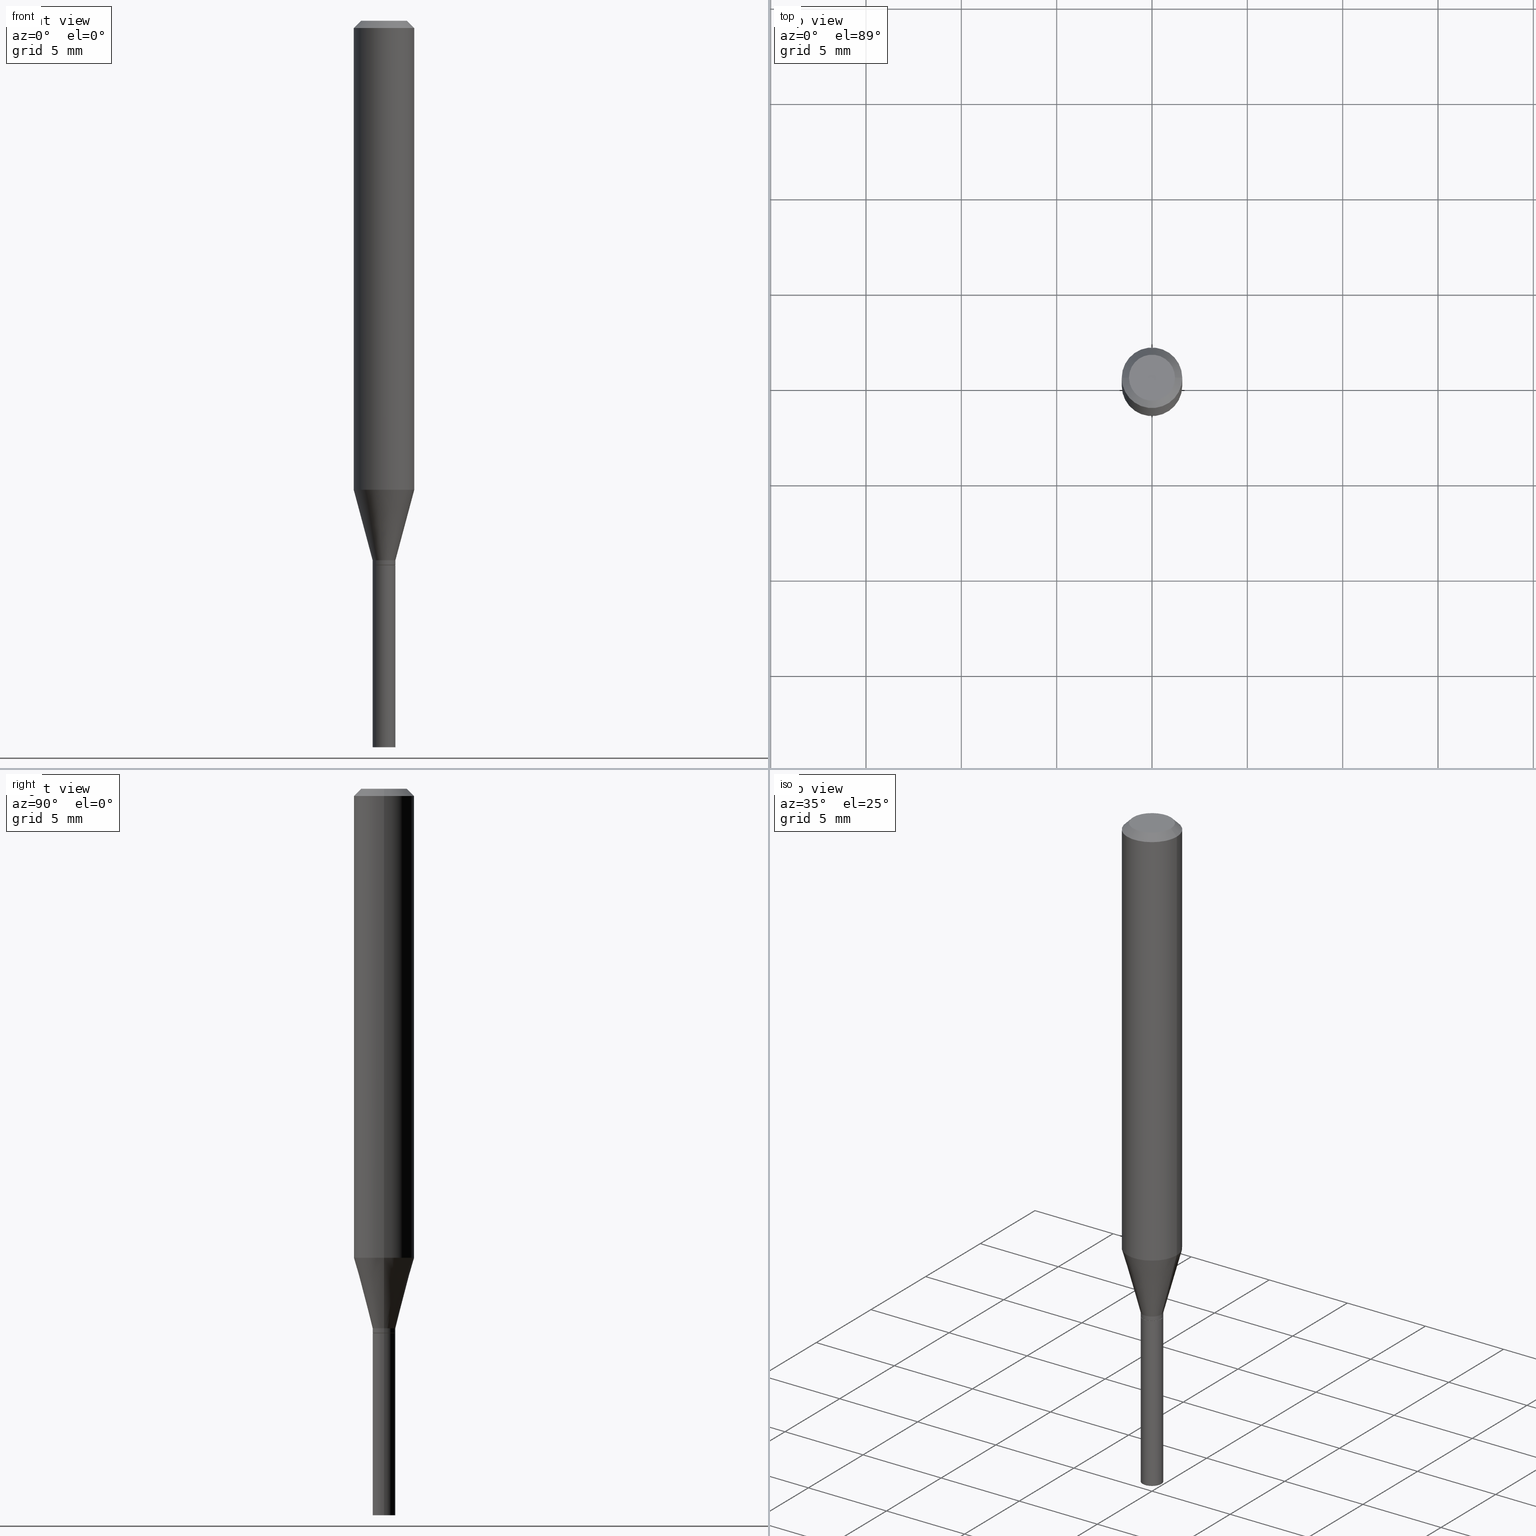
[diagram: canonical four-view strip — front | top / right | iso, engineering-drawing reading convention]
A machine part, canonical four-view strip (front | top / right | iso — engineering-drawing reading convention). The complete STEP part file that produces these views, byte-faithful:
ISO-10303-21;
HEADER;
FILE_DESCRIPTION (( 'STEP AP203' ),
    '1' );
FILE_NAME ('02676.STEP',
    '2024-03-18T21:17:20',
    ( '' ),
    ( '' ),
    'SwSTEP 2.0',
    'SolidWorks 2023',
    '' );
FILE_SCHEMA (( 'CONFIG_CONTROL_DESIGN' ));
ENDSEC;

DATA;
#1 = CIRCLE ( 'NONE', #84, 0.02299999999999999961 ) ;
#2 = APPROVAL_PERSON_ORGANIZATION ( #114, #337, #461 ) ;
#3 = ADVANCED_FACE ( 'NONE', ( #251 ), #270, .T. ) ;
#4 = APPROVAL_STATUS ( 'not_yet_approved' ) ;
#5 = EDGE_CURVE ( 'NONE', #158, #209, #401, .T. ) ;
#6 = AXIS2_PLACEMENT_3D ( 'NONE', #362, #118, #435 ) ;
#7 = LOCAL_TIME ( 17, 17, 20.00000000000000000, #296 ) ;
#8 = EDGE_CURVE ( 'NONE', #374, #295, #407, .T. ) ;
#9 = CYLINDRICAL_SURFACE ( 'NONE', #36, 0.06250000000000000000 ) ;
#10 = APPROVAL_ROLE ( '' ) ;
#11 = AXIS2_PLACEMENT_3D ( 'NONE', #258, #255, #146 ) ;
#12 = EDGE_CURVE ( 'NONE', #180, #87, #328, .T. ) ;
#13 = ORIENTED_EDGE ( 'NONE', *, *, #16, .T. ) ;
#14 = CARTESIAN_POINT ( 'NONE',  ( 0.02350000000000006251, -1.640996229256276957E-16, 1.145901542312047917E-30 ) ) ;
#15 = ORIENTED_EDGE ( 'NONE', *, *, #8, .F. ) ;
#16 = EDGE_CURVE ( 'NONE', #209, #158, #44, .T. ) ;
#17 = DIRECTION ( 'NONE',  ( -2.445468806185136597E-29, 3.491481338843145583E-15, 1.000000000000000000 ) ) ;
#18 = DIRECTION ( 'NONE',  ( 1.000000000000000000, -6.982962677686269866E-15, 0.000000000000000000 ) ) ;
#19 = CONICAL_SURFACE ( 'NONE', #243, 0.02299999999999999961, 0.7853981633974739252 ) ;
#20 = EDGE_LOOP ( 'NONE', ( #120, #276 ) ) ;
#21 = CARTESIAN_POINT ( 'NONE',  ( 2.748706938152093629E-29, -3.924425024859695428E-15, -1.124000000000000110 ) ) ;
#22 = EDGE_LOOP ( 'NONE', ( #92, #408, #58, #233 ) ) ;
#23 = DIRECTION ( 'NONE',  ( -2.445468806185136597E-29, 3.491481338843145583E-15, 1.000000000000000000 ) ) ;
#24 = ORIENTED_EDGE ( 'NONE', *, *, #202, .F. ) ;
#25 = CARTESIAN_POINT ( 'NONE',  ( 2.747484203749001388E-29, -3.922679284190274713E-15, -1.123499999999999943 ) ) ;
#26 = CARTESIAN_POINT ( 'NONE',  ( -0.06250000000000000000, 4.440892098500626162E-16, -3.074334431409316114E-30 ) ) ;
#27 = FACE_OUTER_BOUND ( 'NONE', #185, .T. ) ;
#28 = DIRECTION ( 'NONE',  ( 0.7071067811865361374, -7.319954787623216602E-15, -0.7071067811865587860 ) ) ;
#29 = AXIS2_PLACEMENT_3D ( 'NONE', #379, #23, #317 ) ;
#30 = DIRECTION ( 'NONE',  ( -2.445468806185136597E-29, 3.491481338843145583E-15, 1.000000000000000000 ) ) ;
#31 = DIRECTION ( 'NONE',  ( 1.000000000000000000, -6.982962677686267499E-15, 4.852736867747366768E-29 ) ) ;
#32 = CARTESIAN_POINT ( 'NONE',  ( -0.02350000000000000352, 1.669775429036235687E-16, -1.155949746209903035E-30 ) ) ;
#33 = DATE_AND_TIME ( #356, #157 ) ;
#34 = FACE_OUTER_BOUND ( 'NONE', #175, .T. ) ;
#35 = CARTESIAN_POINT ( 'NONE',  ( 0.06250000000000000000, -4.811533449433679005E-16, -0.01499999999999999944 ) ) ;
#36 = AXIS2_PLACEMENT_3D ( 'NONE', #121, #74, #332 ) ;
#37 = LOCAL_TIME ( 17, 17, 20.00000000000000000, #240 ) ;
#38 = CIRCLE ( 'NONE', #429, 0.02350000000000000352 ) ;
#39 = DATE_AND_TIME ( #198, #345 ) ;
#40 = PRODUCT_DEFINITION_SHAPE ( 'NONE', 'NONE',  #160 ) ;
#41 = ORIENTED_EDGE ( 'NONE', *, *, #420, .T. ) ;
#42 = DIRECTION ( 'NONE',  ( 2.445468806185136597E-29, -3.491481338843145583E-15, -1.000000000000000000 ) ) ;
#43 = CARTESIAN_POINT ( 'NONE',  ( 2.747484203749001388E-29, -3.922679284190274713E-15, -1.123499999999999943 ) ) ;
#44 = CIRCLE ( 'NONE', #29, 0.02350000000000006598 ) ;
#45 = CARTESIAN_POINT ( 'NONE',  ( 3.316907271900976096E-16, 0.04749999999999999362, 7.498036163507942769E-17 ) ) ;
#46 = APPLICATION_CONTEXT ( 'configuration controlled 3d designs of mechanical parts and assemblies' ) ;
#47 = ORIENTED_EDGE ( 'NONE', *, *, #150, .F. ) ;
#48 = EDGE_CURVE ( 'NONE', #350, #95, #139, .T. ) ;
#49 = ORIENTED_EDGE ( 'NONE', *, *, #211, .T. ) ;
#50 = EDGE_CURVE ( 'NONE', #95, #158, #279, .T. ) ;
#51 = AXIS2_PLACEMENT_3D ( 'NONE', #396, #365, #331 ) ;
#52 = CARTESIAN_POINT ( 'NONE',  ( -0.02299999999999999961, -3.761000195634873029E-15, -1.124000000000000110 ) ) ;
#53 = VERTEX_POINT ( 'NONE', #305 ) ;
#54 = DIRECTION ( 'NONE',  ( 1.000000000000000000, -6.982962677686269866E-15, 0.000000000000000000 ) ) ;
#55 = ORIENTED_EDGE ( 'NONE', *, *, #195, .T. ) ;
#56 = CC_DESIGN_APPROVAL ( #337, ( #160 ) ) ;
#57 = CARTESIAN_POINT ( 'NONE',  ( 2.748706938152093629E-29, -3.924425024859695428E-15, -1.124000000000000110 ) ) ;
#58 = ORIENTED_EDGE ( 'NONE', *, *, #5, .F. ) ;
#59 = CARTESIAN_POINT ( 'NONE',  ( 0.04749999999999999362, -4.035134999187569748E-16, 4.816514504602601874E-16 ) ) ;
#60 = CARTESIAN_POINT ( 'NONE',  ( 2.748706938152093629E-29, -3.924425024859695428E-15, -1.124000000000000110 ) ) ;
#61 = EDGE_CURVE ( 'NONE', #177, #285, #442, .T. ) ;
#62 = EDGE_LOOP ( 'NONE', ( #89, #386, #166, #272 ) ) ;
#63 = CC_DESIGN_APPROVAL ( #304, ( #409 ) ) ;
#64 = PLANE ( 'NONE',  #381 ) ;
#65 = CARTESIAN_POINT ( 'NONE',  ( 0.000000000000000000, 0.000000000000000000, 0.000000000000000000 ) ) ;
#66 = CARTESIAN_POINT ( 'NONE',  ( 0.02350000000000000352, -1.640996229256272766E-16, 1.145901542312045115E-30 ) ) ;
#67 = CC_DESIGN_PERSON_AND_ORGANIZATION_ASSIGNMENT ( #292, #104, ( #160 ) ) ;
#68 = COORDINATED_UNIVERSAL_TIME_OFFSET ( 5, 0, .BEHIND. ) ;
#69 = AXIS2_PLACEMENT_3D ( 'NONE', #65, #226, #357 ) ;
#70 = LOCAL_TIME ( 17, 17, 20.00000000000000000, #338 ) ;
#71 = FACE_OUTER_BOUND ( 'NONE', #213, .T. ) ;
#72 = DATE_TIME_ROLE ( 'classification_date' ) ;
#73 = DATE_AND_TIME ( #398, #7 ) ;
#74 = DIRECTION ( 'NONE',  ( -2.445468806185136597E-29, 3.491481338843145583E-15, 1.000000000000000000 ) ) ;
#75 = PLANE ( 'NONE',  #297 ) ;
#76 = AXIS2_PLACEMENT_3D ( 'NONE', #352, #313, #93 ) ;
#77 = DIRECTION ( 'NONE',  ( -1.000000000000000000, 6.982962677686266711E-15, 0.000000000000000000 ) ) ;
#78 = PERSON_AND_ORGANIZATION ( #450, #334 ) ;
#79 = FACE_OUTER_BOUND ( 'NONE', #282, .T. ) ;
#80 = EDGE_CURVE ( 'NONE', #96, #295, #220, .T. ) ;
#81 = ORIENTED_EDGE ( 'NONE', *, *, #284, .T. ) ;
#82 = CARTESIAN_POINT ( 'NONE',  ( -0.02350000000000000352, -4.413845973658583505E-15, -1.124000000000000110 ) ) ;
#83 = ORIENTED_EDGE ( 'NONE', *, *, #100, .F. ) ;
#84 = AXIS2_PLACEMENT_3D ( 'NONE', #60, #290, #108 ) ;
#85 = CIRCLE ( 'NONE', #360, 0.02299999999999999961 ) ;
#86 = DIRECTION ( 'NONE',  ( 1.000000000000000000, -6.982962677686266711E-15, 0.000000000000000000 ) ) ;
#87 = VERTEX_POINT ( 'NONE', #112 ) ;
#88 = CARTESIAN_POINT ( 'NONE',  ( -0.02350000000000006598, -3.722532668567641270E-15, -1.114000000000000101 ) ) ;
#89 = ORIENTED_EDGE ( 'NONE', *, *, #211, .F. ) ;
#90 = DIRECTION ( 'NONE',  ( 1.000000000000000000, -6.982962677686266711E-15, 4.876176775795935793E-29 ) ) ;
#91 = DIRECTION ( 'NONE',  ( -2.445468806185136597E-29, 3.491481338843145583E-15, 1.000000000000000000 ) ) ;
#92 = ORIENTED_EDGE ( 'NONE', *, *, #299, .T. ) ;
#93 = DIRECTION ( 'NONE',  ( 1.000000000000000000, -6.982962677686271444E-15, 0.000000000000000000 ) ) ;
#94 = DIRECTION ( 'NONE',  ( 1.000000000000000000, -6.982962677686269866E-15, 0.000000000000000000 ) ) ;
#95 = VERTEX_POINT ( 'NONE', #466 ) ;
#96 = VERTEX_POINT ( 'NONE', #155 ) ;
#97 = DIRECTION ( 'NONE',  ( 0.000000000000000000, 0.000000000000000000, 1.000000000000000000 ) ) ;
#98 = EDGE_CURVE ( 'NONE', #453, #295, #257, .T. ) ;
#99 = DIRECTION ( 'NONE',  ( 1.000000000000000000, -6.982962677686266711E-15, 4.876176775795935793E-29 ) ) ;
#100 = EDGE_CURVE ( 'NONE', #453, #219, #310, .T. ) ;
#101 = ORIENTED_EDGE ( 'NONE', *, *, #420, .F. ) ;
#102 = CARTESIAN_POINT ( 'NONE',  ( 3.668203209277705088E-31, -5.237222008264718399E-17, -0.01499999999999999944 ) ) ;
#103 = DIRECTION ( 'NONE',  ( -2.445468806185136597E-29, 3.491481338843145583E-15, 1.000000000000000000 ) ) ;
#104 = PERSON_AND_ORGANIZATION_ROLE ( 'creator' ) ;
#105 = CARTESIAN_POINT ( 'NONE',  ( -0.02350000000000006598, -3.329884312964718745E-15, -1.114000000000000101 ) ) ;
#106 = AXIS2_PLACEMENT_3D ( 'NONE', #234, #42, #77 ) ;
#107 = EDGE_CURVE ( 'NONE', #350, #177, #1, .T. ) ;
#108 = DIRECTION ( 'NONE',  ( 1.000000000000000000, -6.982962677686269866E-15, 0.000000000000000000 ) ) ;
#109 = ORIENTED_EDGE ( 'NONE', *, *, #311, .F. ) ;
#110 = APPROVAL_STATUS ( 'not_yet_approved' ) ;
#111 = CARTESIAN_POINT ( 'NONE',  ( 1.640996229256547634E-16, 0.02349999999999607958, -1.124000000000000332 ) ) ;
#112 = CARTESIAN_POINT ( 'NONE',  ( -0.02350000000000000352, -4.413845973658583505E-15, -1.500000000000000222 ) ) ;
#113 = PRODUCT ( '02676', '02676', '', ( #308 ) ) ;
#114 = PERSON_AND_ORGANIZATION ( #450, #334 ) ;
#115 = DESIGN_CONTEXT ( 'detailed design', #46, 'design' ) ;
#116 = AXIS2_PLACEMENT_3D ( 'NONE', #111, #154, #225 ) ;
#117 = VECTOR ( 'NONE', #245, 39.37007874015748854 ) ;
#118 = DIRECTION ( 'NONE',  ( 2.445468806185136597E-29, -3.491481338843145583E-15, -1.000000000000000000 ) ) ;
#119 = DATE_AND_TIME ( #333, #37 ) ;
#120 = ORIENTED_EDGE ( 'NONE', *, *, #107, .F. ) ;
#121 = CARTESIAN_POINT ( 'NONE',  ( 0.000000000000000000, 0.000000000000000000, 0.000000000000000000 ) ) ;
#122 = APPROVAL_STATUS ( 'not_yet_approved' ) ;
#123 = CLOSED_SHELL ( 'NONE', ( #3, #327, #250, #261, #448, #206, #239, #156, #144, #433, #336, #437 ) ) ;
#124 = VECTOR ( 'NONE', #149, 39.37007874015748143 ) ;
#125 = PLANE ( 'NONE',  #116 ) ;
#126 = DIRECTION ( 'NONE',  ( 1.000000000000000000, -6.982962677686271444E-15, 0.000000000000000000 ) ) ;
#127 = ORIENTED_EDGE ( 'NONE', *, *, #150, .T. ) ;
#128 = DIRECTION ( 'NONE',  ( 0.7071067811865656694, -2.468850131082446387E-15, 0.7071067811865294761 ) ) ;
#129 = EDGE_CURVE ( 'NONE', #180, #424, #181, .T. ) ;
#130 = DIRECTION ( 'NONE',  ( -2.445468806185136597E-29, 3.491481338843145583E-15, 1.000000000000000000 ) ) ;
#131 =( GEOMETRIC_REPRESENTATION_CONTEXT ( 3 ) GLOBAL_UNCERTAINTY_ASSIGNED_CONTEXT ( ( #458 ) ) GLOBAL_UNIT_ASSIGNED_CONTEXT ( ( #463, #214, #176 ) ) REPRESENTATION_CONTEXT ( 'NONE', 'WORKASPACE' ) );
#132 = DIRECTION ( 'NONE',  ( -2.445468806185136597E-29, 3.491481338843145583E-15, 1.000000000000000000 ) ) ;
#133 = ORIENTED_EDGE ( 'NONE', *, *, #8, .T. ) ;
#134 = CARTESIAN_POINT ( 'NONE',  ( 2.748706938152093629E-29, -3.924425024859695428E-15, -1.124000000000000110 ) ) ;
#135 = EDGE_LOOP ( 'NONE', ( #41, #417 ) ) ;
#136 = ORIENTED_EDGE ( 'NONE', *, *, #199, .T. ) ;
#137 = DIRECTION ( 'NONE',  ( -2.445468806185136597E-29, 3.491481338843145583E-15, 1.000000000000000000 ) ) ;
#138 = EDGE_CURVE ( 'NONE', #158, #374, #326, .T. ) ;
#139 = LINE ( 'NONE', #443, #344 ) ;
#140 = EDGE_LOOP ( 'NONE', ( #322, #343, #432, #419 ) ) ;
#141 = VECTOR ( 'NONE', #169, 39.37007874015748143 ) ;
#142 = DIRECTION ( 'NONE',  ( -2.445468806185136597E-29, 3.491481338843145583E-15, 1.000000000000000000 ) ) ;
#143 = AXIS2_PLACEMENT_3D ( 'NONE', #309, #445, #411 ) ;
#144 = ADVANCED_FACE ( 'NONE', ( #431 ), #75, .F. ) ;
#145 = CYLINDRICAL_SURFACE ( 'NONE', #271, 0.02350000000000006251 ) ;
#146 = DIRECTION ( 'NONE',  ( 1.000000000000000000, -6.982962677686267499E-15, 4.852736867747366768E-29 ) ) ;
#147 = FACE_OUTER_BOUND ( 'NONE', #200, .T. ) ;
#148 = DIRECTION ( 'NONE',  ( -2.445468806185136597E-29, 3.491481338843145583E-15, 1.000000000000000000 ) ) ;
#149 = DIRECTION ( 'NONE',  ( -2.445468806185136877E-29, 3.491481338843145188E-15, 1.000000000000000000 ) ) ;
#150 = EDGE_CURVE ( 'NONE', #219, #96, #399, .T. ) ;
#151 = CARTESIAN_POINT ( 'NONE',  ( 0.06250000000000000000, -4.888073874380388472E-16, -0.01499999999999999944 ) ) ;
#152 = CIRCLE ( 'NONE', #236, 0.02350000000000006251 ) ;
#153 = APPLICATION_PROTOCOL_DEFINITION ( 'international standard', 'config_control_design', 1994, #46 ) ;
#154 = DIRECTION ( 'NONE',  ( 2.438088387897960049E-29, -3.491481338843145188E-15, -1.000000000000000000 ) ) ;
#155 = CARTESIAN_POINT ( 'NONE',  ( -0.06250000000000000000, -1.272759483797190539E-15, -0.01499999999999999944 ) ) ;
#156 = ADVANCED_FACE ( 'NONE', ( #79 ), #281, .T. ) ;
#157 = LOCAL_TIME ( 17, 17, 20.00000000000000000, #224 ) ;
#158 = VERTEX_POINT ( 'NONE', #161 ) ;
#159 = DATE_AND_TIME ( #405, #70 ) ;
#160 = PRODUCT_DEFINITION ( 'UNKNOWN', '', #409, #115 ) ;
#161 = CARTESIAN_POINT ( 'NONE',  ( 0.02350000000000006598, -4.053609834396893003E-15, -1.114000000000000101 ) ) ;
#162 = VECTOR ( 'NONE', #410, 39.37007874015748143 ) ;
#163 = SECURITY_CLASSIFICATION_LEVEL ( 'unclassified' ) ;
#164 = ORIENTED_EDGE ( 'NONE', *, *, #380, .F. ) ;
#165 = DIRECTION ( 'NONE',  ( -2.445468806185136877E-29, 3.491481338843145188E-15, 1.000000000000000000 ) ) ;
#166 = ORIENTED_EDGE ( 'NONE', *, *, #129, .T. ) ;
#167 = EDGE_LOOP ( 'NONE', ( #109, #274, #280, #369 ) ) ;
#168 = CARTESIAN_POINT ( 'NONE',  ( 0.06250000000000000000, -3.817760334567251294E-15, -0.9684500185048144916 ) ) ;
#169 = DIRECTION ( 'NONE',  ( -2.445468806185136877E-29, 3.491481338843145188E-15, 1.000000000000000000 ) ) ;
#170 = ORIENTED_EDGE ( 'NONE', *, *, #195, .F. ) ;
#171 = CARTESIAN_POINT ( 'NONE',  ( 2.724252250090242644E-29, -3.889510211471265357E-15, -1.114000000000000101 ) ) ;
#172 = ORIENTED_EDGE ( 'NONE', *, *, #98, .T. ) ;
#173 = ADVANCED_FACE ( 'NONE', ( #301 ), #125, .F. ) ;
#174 = CARTESIAN_POINT ( 'NONE',  ( 2.748706938152093629E-29, -3.924425024859695428E-15, -1.124000000000000110 ) ) ;
#175 = EDGE_LOOP ( 'NONE', ( #83, #172, #136, #47 ) ) ;
#176 =( NAMED_UNIT ( * ) SI_UNIT ( $, .STERADIAN. ) SOLID_ANGLE_UNIT ( ) );
#177 = VERTEX_POINT ( 'NONE', #218 ) ;
#178 = FACE_OUTER_BOUND ( 'NONE', #140, .T. ) ;
#179 = CC_DESIGN_PERSON_AND_ORGANIZATION_ASSIGNMENT ( #238, #303, ( #447 ) ) ;
#180 = VERTEX_POINT ( 'NONE', #462 ) ;
#181 = LINE ( 'NONE', #66, #252 ) ;
#182 = DIRECTION ( 'NONE',  ( 1.000000000000000000, -6.982962677686273021E-15, 0.000000000000000000 ) ) ;
#183 = AXIS2_PLACEMENT_3D ( 'NONE', #102, #30, #184 ) ;
#184 = DIRECTION ( 'NONE',  ( 1.000000000000000000, -6.982962677686266711E-15, 0.000000000000000000 ) ) ;
#185 = EDGE_LOOP ( 'NONE', ( #316, #217, #24, #249 ) ) ;
#186 = CARTESIAN_POINT ( 'NONE',  ( 0.000000000000000000, 0.000000000000000000, 0.000000000000000000 ) ) ;
#187 = ORIENTED_EDGE ( 'NONE', *, *, #284, .F. ) ;
#188 = DIRECTION ( 'NONE',  ( -2.445468806185136597E-29, 3.491481338843145583E-15, 1.000000000000000000 ) ) ;
#189 = ORIENTED_EDGE ( 'NONE', *, *, #100, .T. ) ;
#190 = DIRECTION ( 'NONE',  ( -2.438088387897960049E-29, 3.491481338843145188E-15, 1.000000000000000000 ) ) ;
#191 = AXIS2_PLACEMENT_3D ( 'NONE', #342, #17, #86 ) ;
#192 = CARTESIAN_POINT ( 'NONE',  ( 0.02350000000000006598, -4.053609834396893003E-15, -1.114000000000000101 ) ) ;
#193 = AXIS2_PLACEMENT_3D ( 'NONE', #416, #454, #94 ) ;
#194 = APPROVAL_PERSON_ORGANIZATION ( #330, #304, #263 ) ;
#195 = EDGE_CURVE ( 'NONE', #53, #96, #425, .T. ) ;
#196 = DATE_TIME_ROLE ( 'creation_date' ) ;
#197 = CYLINDRICAL_SURFACE ( 'NONE', #51, 0.02350000000000000352 ) ;
#198 = CALENDAR_DATE ( 2024, 18, 3 ) ;
#199 = EDGE_CURVE ( 'NONE', #295, #96, #353, .T. ) ;
#200 = EDGE_LOOP ( 'NONE', ( #254, #13, #414, #164 ) ) ;
#201 = VECTOR ( 'NONE', #28, 39.37007874015748854 ) ;
#202 = EDGE_CURVE ( 'NONE', #374, #53, #439, .T. ) ;
#203 = AXIS2_PLACEMENT_3D ( 'NONE', #174, #137, #375 ) ;
#204 = ORIENTED_EDGE ( 'NONE', *, *, #61, .F. ) ;
#205 = CARTESIAN_POINT ( 'NONE',  ( 3.668203209277704895E-29, -5.237222008264718177E-15, -1.500000000000000222 ) ) ;
#206 = ADVANCED_FACE ( 'NONE', ( #147 ), #300, .T. ) ;
#207 = DIMENSIONAL_EXPONENTS ( 1.000000000000000000, 0.000000000000000000, 0.000000000000000000, 0.000000000000000000, 0.000000000000000000, 0.000000000000000000, 0.000000000000000000 ) ;
#208 = DIRECTION ( 'NONE',  ( -0.7071067811865656694, 7.493145998870420424E-15, 0.7071067811865294761 ) ) ;
#209 = VERTEX_POINT ( 'NONE', #105 ) ;
#210 = DIRECTION ( 'NONE',  ( -2.445468806185136597E-29, 3.491481338843145583E-15, 1.000000000000000000 ) ) ;
#211 = EDGE_CURVE ( 'NONE', #87, #307, #216, .T. ) ;
#212 = VECTOR ( 'NONE', #208, 39.37007874015748143 ) ;
#213 = EDGE_LOOP ( 'NONE', ( #253, #55, #246, #15 ) ) ;
#214 =( NAMED_UNIT ( * ) PLANE_ANGLE_UNIT ( ) SI_UNIT ( $, .RADIAN. ) );
#215 = PRODUCT_RELATED_PRODUCT_CATEGORY ( 'detail', '', ( #113 ) ) ;
#216 = LINE ( 'NONE', #32, #124 ) ;
#217 = ORIENTED_EDGE ( 'NONE', *, *, #402, .T. ) ;
#218 = CARTESIAN_POINT ( 'NONE',  ( -0.02299999999999999961, -3.758350968460761828E-15, -1.124000000000000110 ) ) ;
#219 = VERTEX_POINT ( 'NONE', #287 ) ;
#220 = CIRCLE ( 'NONE', #191, 0.06250000000000000000 ) ;
#221 = CARTESIAN_POINT ( 'NONE',  ( 2.724252250090242644E-29, -3.889510211471265357E-15, -1.114000000000000101 ) ) ;
#222 = ORIENTED_EDGE ( 'NONE', *, *, #12, .T. ) ;
#223 = CIRCLE ( 'NONE', #237, 0.02350000000000000352 ) ;
#224 = COORDINATED_UNIVERSAL_TIME_OFFSET ( 5, 0, .BEHIND. ) ;
#225 = DIRECTION ( 'NONE',  ( -1.000000000000000000, 6.982962677686265922E-15, -4.876176775795935793E-29 ) ) ;
#226 = DIRECTION ( 'NONE',  ( -2.445468806185136597E-29, 3.491481338843145583E-15, 1.000000000000000000 ) ) ;
#227 = DIRECTION ( 'NONE',  ( -2.445468806185136597E-29, 3.491481338843145583E-15, 1.000000000000000000 ) ) ;
#228 = PERSON_AND_ORGANIZATION ( #450, #334 ) ;
#229 = AXIS2_PLACEMENT_3D ( 'NONE', #321, #142, #459 ) ;
#230 = CC_DESIGN_SECURITY_CLASSIFICATION ( #447, ( #409 ) ) ;
#231 = CC_DESIGN_DATE_AND_TIME_ASSIGNMENT ( #119, #72, ( #447 ) ) ;
#232 = APPROVAL_DATE_TIME ( #73, #304 ) ;
#233 = ORIENTED_EDGE ( 'NONE', *, *, #50, .F. ) ;
#234 = CARTESIAN_POINT ( 'NONE',  ( 3.668203209277705088E-31, -5.237222008264718399E-17, -0.01499999999999999944 ) ) ;
#235 = ADVANCED_FACE ( 'NONE', ( #392 ), #64, .F. ) ;
#236 = AXIS2_PLACEMENT_3D ( 'NONE', #25, #428, #182 ) ;
#237 = AXIS2_PLACEMENT_3D ( 'NONE', #248, #91, #376 ) ;
#238 = PERSON_AND_ORGANIZATION ( #450, #334 ) ;
#239 = ADVANCED_FACE ( 'NONE', ( #260 ), #394, .T. ) ;
#240 = COORDINATED_UNIVERSAL_TIME_OFFSET ( 5, 0, .BEHIND. ) ;
#241 = CARTESIAN_POINT ( 'NONE',  ( 2.748706938152093629E-29, -3.924425024859695428E-15, -1.124000000000000110 ) ) ;
#242 = CLOSED_SHELL ( 'NONE', ( #266, #235, #452, #173 ) ) ;
#243 = AXIS2_PLACEMENT_3D ( 'NONE', #241, #346, #244 ) ;
#244 = DIRECTION ( 'NONE',  ( 1.000000000000000000, -6.982962677686269866E-15, 0.000000000000000000 ) ) ;
#245 = DIRECTION ( 'NONE',  ( -0.2588190451025211836, 5.211531920934547886E-15, 0.9659258262890679791 ) ) ;
#246 = ORIENTED_EDGE ( 'NONE', *, *, #199, .F. ) ;
#247 = MANIFOLD_SOLID_BREP ( 'Body-Move/Copy2[1]', #242 ) ;
#248 = CARTESIAN_POINT ( 'NONE',  ( 2.748706938152093629E-29, -3.924425024859695428E-15, -1.124000000000000110 ) ) ;
#249 = ORIENTED_EDGE ( 'NONE', *, *, #138, .F. ) ;
#250 = ADVANCED_FACE ( 'NONE', ( #34 ), #366, .T. ) ;
#251 = FACE_OUTER_BOUND ( 'NONE', #22, .T. ) ;
#252 = VECTOR ( 'NONE', #318, 39.37007874015748143 ) ;
#253 = ORIENTED_EDGE ( 'NONE', *, *, #202, .T. ) ;
#254 = ORIENTED_EDGE ( 'NONE', *, *, #402, .F. ) ;
#255 = DIRECTION ( 'NONE',  ( -2.445468806185136597E-29, 3.491481338843145583E-15, 1.000000000000000000 ) ) ;
#256 = EDGE_LOOP ( 'NONE', ( #278, #291 ) ) ;
#257 = LINE ( 'NONE', #35, #201 ) ;
#258 = CARTESIAN_POINT ( 'NONE',  ( -1.177863597554385851E-44, 1.681677051108723369E-30, 4.816514504602576236E-16 ) ) ;
#259 = VECTOR ( 'NONE', #289, 39.37007874015748143 ) ;
#260 = FACE_OUTER_BOUND ( 'NONE', #444, .T. ) ;
#261 = ADVANCED_FACE ( 'NONE', ( #71 ), #9, .T. ) ;
#262 = CC_DESIGN_PERSON_AND_ORGANIZATION_ASSIGNMENT ( #78, #335, ( #409 ) ) ;
#263 = APPROVAL_ROLE ( '' ) ;
#264 = FACE_OUTER_BOUND ( 'NONE', #412, .T. ) ;
#265 = CC_DESIGN_APPROVAL ( #269, ( #447 ) ) ;
#266 = ADVANCED_FACE ( 'NONE', ( #264 ), #197, .T. ) ;
#267 = CONICAL_SURFACE ( 'NONE', #76, 0.02350000000000006598, 0.2617993877991499074 ) ;
#268 = PERSON_AND_ORGANIZATION ( #450, #334 ) ;
#269 = APPROVAL ( #122, 'UNSPECIFIED' ) ;
#270 = CYLINDRICAL_SURFACE ( 'NONE', #434, 0.02350000000000006251 ) ;
#271 = AXIS2_PLACEMENT_3D ( 'NONE', #423, #148, #99 ) ;
#272 = ORIENTED_EDGE ( 'NONE', *, *, #349, .F. ) ;
#273 = EDGE_CURVE ( 'NONE', #285, #95, #358, .T. ) ;
#274 = ORIENTED_EDGE ( 'NONE', *, *, #273, .T. ) ;
#275 = EDGE_LOOP ( 'NONE', ( #81, #189 ) ) ;
#276 = ORIENTED_EDGE ( 'NONE', *, *, #388, .F. ) ;
#277 = LINE ( 'NONE', #341, #141 ) ;
#278 = ORIENTED_EDGE ( 'NONE', *, *, #12, .F. ) ;
#279 = LINE ( 'NONE', #14, #440 ) ;
#280 = ORIENTED_EDGE ( 'NONE', *, *, #50, .T. ) ;
#281 = CONICAL_SURFACE ( 'NONE', #106, 0.06250000000000000000, 0.7853981633974322918 ) ;
#282 = EDGE_LOOP ( 'NONE', ( #441, #187, #127, #329 ) ) ;
#283 = DIRECTION ( 'NONE',  ( 1.000000000000000000, -6.982962677686265922E-15, 4.876176775795935793E-29 ) ) ;
#284 = EDGE_CURVE ( 'NONE', #219, #453, #339, .T. ) ;
#285 = VERTEX_POINT ( 'NONE', #464 ) ;
#286 = CARTESIAN_POINT ( 'NONE',  ( -1.177863597554385851E-44, 1.681677051108723369E-30, 4.816514504602576236E-16 ) ) ;
#287 = CARTESIAN_POINT ( 'NONE',  ( -0.04749999999999999362, 3.578768372314218888E-16, 4.816514504602552570E-16 ) ) ;
#288 = VECTOR ( 'NONE', #294, 39.37007874015748854 ) ;
#289 = DIRECTION ( 'NONE',  ( -2.445468806185136877E-29, 3.491481338843145188E-15, 1.000000000000000000 ) ) ;
#290 = DIRECTION ( 'NONE',  ( -2.445468806185136597E-29, 3.491481338843145583E-15, 1.000000000000000000 ) ) ;
#291 = ORIENTED_EDGE ( 'NONE', *, *, #361, .F. ) ;
#292 = PERSON_AND_ORGANIZATION ( #450, #334 ) ;
#293 = CC_DESIGN_PERSON_AND_ORGANIZATION_ASSIGNMENT ( #228, #359, ( #113 ) ) ;
#294 = DIRECTION ( 'NONE',  ( 0.2588190451025211836, 1.565188264969622559E-15, 0.9659258262890679791 ) ) ;
#295 = VERTEX_POINT ( 'NONE', #151 ) ;
#296 = COORDINATED_UNIVERSAL_TIME_OFFSET ( 5, 0, .BEHIND. ) ;
#297 = AXIS2_PLACEMENT_3D ( 'NONE', #45, #397, #363 ) ;
#298 = CARTESIAN_POINT ( 'NONE',  ( -0.06250000000000000000, 3.840629472727444916E-16, -0.01499999999999999944 ) ) ;
#299 = EDGE_CURVE ( 'NONE', #95, #285, #152, .T. ) ;
#300 = CONICAL_SURFACE ( 'NONE', #371, 0.02350000000000006598, 0.2617993877991499074 ) ;
#301 = FACE_OUTER_BOUND ( 'NONE', #135, .T. ) ;
#302 = ORIENTED_EDGE ( 'NONE', *, *, #80, .F. ) ;
#303 = PERSON_AND_ORGANIZATION_ROLE ( 'classification_officer' ) ;
#304 = APPROVAL ( #4, 'UNSPECIFIED' ) ;
#305 = CARTESIAN_POINT ( 'NONE',  ( -0.06250000000000000000, -2.937235957361797009E-15, -0.9684500185048144916 ) ) ;
#306 = APPLICATION_CONTEXT ( 'configuration controlled 3d designs of mechanical parts and assemblies' ) ;
#307 = VERTEX_POINT ( 'NONE', #82 ) ;
#308 = MECHANICAL_CONTEXT ( 'NONE', #306, 'mechanical' ) ;
#309 = CARTESIAN_POINT ( 'NONE',  ( 2.368314310602942149E-29, -3.381325167211859231E-15, -0.9684500185048144916 ) ) ;
#310 = CIRCLE ( 'NONE', #422, 0.04749999999999999362 ) ;
#311 = EDGE_CURVE ( 'NONE', #285, #209, #277, .T. ) ;
#312 = DIRECTION ( 'NONE',  ( -2.445468806185136597E-29, 3.491481338843145583E-15, 1.000000000000000000 ) ) ;
#313 = DIRECTION ( 'NONE',  ( -2.445468806185136597E-29, 3.491481338843145583E-15, 1.000000000000000000 ) ) ;
#314 = DIRECTION ( 'NONE',  ( -2.445468806185136597E-29, 3.491481338843145583E-15, 1.000000000000000000 ) ) ;
#315 = FACE_OUTER_BOUND ( 'NONE', #20, .T. ) ;
#316 = ORIENTED_EDGE ( 'NONE', *, *, #5, .T. ) ;
#317 = DIRECTION ( 'NONE',  ( 1.000000000000000000, -6.982962677686271444E-15, 0.000000000000000000 ) ) ;
#318 = DIRECTION ( 'NONE',  ( -2.445468806185136877E-29, 3.491481338843145188E-15, 1.000000000000000000 ) ) ;
#319 = AXIS2_PLACEMENT_3D ( 'NONE', #21, #312, #54 ) ;
#320 = ORIENTED_EDGE ( 'NONE', *, *, #273, .F. ) ;
#321 = CARTESIAN_POINT ( 'NONE',  ( 2.368314310602942149E-29, -3.381325167211859231E-15, -0.9684500185048144916 ) ) ;
#322 = ORIENTED_EDGE ( 'NONE', *, *, #107, .T. ) ;
#323 = CYLINDRICAL_SURFACE ( 'NONE', #395, 0.02350000000000000352 ) ;
#324 = DIRECTION ( 'NONE',  ( 1.000000000000000000, -6.982962677686273021E-15, 0.000000000000000000 ) ) ;
#325 = DIRECTION ( 'NONE',  ( 1.000000000000000000, -6.982962677686265922E-15, 4.876176775795935793E-29 ) ) ;
#326 = LINE ( 'NONE', #192, #288 ) ;
#327 = ADVANCED_FACE ( 'NONE', ( #178 ), #456, .T. ) ;
#328 = CIRCLE ( 'NONE', #193, 0.02350000000000000352 ) ;
#329 = ORIENTED_EDGE ( 'NONE', *, *, #80, .T. ) ;
#330 = PERSON_AND_ORGANIZATION ( #450, #334 ) ;
#331 = DIRECTION ( 'NONE',  ( 1.000000000000000000, -6.982962677686265922E-15, 4.876176775795935793E-29 ) ) ;
#332 = DIRECTION ( 'NONE',  ( 1.000000000000000000, -6.982962677686266711E-15, 4.876176775795935793E-29 ) ) ;
#333 = CALENDAR_DATE ( 2024, 18, 3 ) ;
#334 = ORGANIZATION ( 'UNSPECIFIED', 'UNSPECIFIED', '' ) ;
#335 = PERSON_AND_ORGANIZATION_ROLE ( 'design_supplier' ) ;
#336 = ADVANCED_FACE ( 'NONE', ( #449 ), #19, .T. ) ;
#337 = APPROVAL ( #110, 'UNSPECIFIED' ) ;
#338 = COORDINATED_UNIVERSAL_TIME_OFFSET ( 5, 0, .BEHIND. ) ;
#339 = CIRCLE ( 'NONE', #11, 0.04749999999999999362 ) ;
#340 = AXIS2_PLACEMENT_3D ( 'NONE', #57, #393, #283 ) ;
#341 = CARTESIAN_POINT ( 'NONE',  ( -0.02350000000000006251, 1.669775429036239878E-16, -1.155949746209906013E-30 ) ) ;
#342 = CARTESIAN_POINT ( 'NONE',  ( 3.668203209277705088E-31, -5.237222008264718399E-17, -0.01499999999999999944 ) ) ;
#343 = ORIENTED_EDGE ( 'NONE', *, *, #61, .T. ) ;
#344 = VECTOR ( 'NONE', #128, 39.37007874015748143 ) ;
#345 = LOCAL_TIME ( 17, 17, 20.00000000000000000, #68 ) ;
#346 = DIRECTION ( 'NONE',  ( -2.445468806185136597E-29, 3.491481338843145583E-15, 1.000000000000000000 ) ) ;
#347 = ORIENTED_EDGE ( 'NONE', *, *, #380, .T. ) ;
#348 = FACE_OUTER_BOUND ( 'NONE', #167, .T. ) ;
#349 = EDGE_CURVE ( 'NONE', #307, #424, #391, .T. ) ;
#350 = VERTEX_POINT ( 'NONE', #370 ) ;
#351 = CC_DESIGN_DATE_AND_TIME_ASSIGNMENT ( #39, #196, ( #160 ) ) ;
#352 = CARTESIAN_POINT ( 'NONE',  ( 2.724252250090242644E-29, -3.889510211471265357E-15, -1.114000000000000101 ) ) ;
#353 = CIRCLE ( 'NONE', #183, 0.06250000000000000000 ) ;
#354 = LENGTH_MEASURE_WITH_UNIT ( LENGTH_MEASURE( 0.02539999999999999897 ), #460 );
#355 = CARTESIAN_POINT ( 'NONE',  ( 3.576687321579069994E-29, -5.368277968210015545E-15, -1.500000000000000222 ) ) ;
#356 = CALENDAR_DATE ( 2024, 18, 3 ) ;
#357 = DIRECTION ( 'NONE',  ( 1.000000000000000000, -6.982962677686266711E-15, 4.876176775795935793E-29 ) ) ;
#358 = CIRCLE ( 'NONE', #427, 0.02350000000000006251 ) ;
#359 = PERSON_AND_ORGANIZATION_ROLE ( 'design_owner' ) ;
#360 = AXIS2_PLACEMENT_3D ( 'NONE', #134, #130, #384 ) ;
#361 = EDGE_CURVE ( 'NONE', #87, #180, #38, .T. ) ;
#362 = CARTESIAN_POINT ( 'NONE',  ( 3.668203209277705088E-31, -5.237222008264718399E-17, -0.01499999999999999944 ) ) ;
#363 = DIRECTION ( 'NONE',  ( -1.000000000000000000, 6.982962677686265922E-15, -4.876176775795935793E-29 ) ) ;
#364 = PERSON_AND_ORGANIZATION ( #450, #334 ) ;
#365 = DIRECTION ( 'NONE',  ( -2.445468806185136597E-29, 3.491481338843145583E-15, 1.000000000000000000 ) ) ;
#366 = CONICAL_SURFACE ( 'NONE', #6, 0.06250000000000000000, 0.7853981633974322918 ) ;
#367 = ADVANCED_BREP_SHAPE_REPRESENTATION ( '02676', ( #247, #389, #372 ), #131 ) ;
#368 = CC_DESIGN_PERSON_AND_ORGANIZATION_ASSIGNMENT ( #364, #404, ( #409 ) ) ;
#369 = ORIENTED_EDGE ( 'NONE', *, *, #16, .F. ) ;
#370 = CARTESIAN_POINT ( 'NONE',  ( 0.02299999999999999961, -4.085033166446480067E-15, -1.124000000000000110 ) ) ;
#371 = AXIS2_PLACEMENT_3D ( 'NONE', #221, #188, #385 ) ;
#372 = AXIS2_PLACEMENT_3D ( 'NONE', #421, #97, #436 ) ;
#373 = CARTESIAN_POINT ( 'NONE',  ( 0.000000000000000000, 0.000000000000000000, 0.000000000000000000 ) ) ;
#374 = VERTEX_POINT ( 'NONE', #168 ) ;
#375 = DIRECTION ( 'NONE',  ( 1.000000000000000000, -6.982962677686269866E-15, 0.000000000000000000 ) ) ;
#376 = DIRECTION ( 'NONE',  ( 1.000000000000000000, -6.982962677686269866E-15, 0.000000000000000000 ) ) ;
#377 = ORIENTED_EDGE ( 'NONE', *, *, #129, .F. ) ;
#378 = CARTESIAN_POINT ( 'NONE',  ( 0.02350000000000000352, -4.088524647785323075E-15, -1.124000000000000110 ) ) ;
#379 = CARTESIAN_POINT ( 'NONE',  ( 2.724252250090242644E-29, -3.889510211471265357E-15, -1.114000000000000101 ) ) ;
#380 = EDGE_CURVE ( 'NONE', #53, #374, #382, .T. ) ;
#381 = AXIS2_PLACEMENT_3D ( 'NONE', #355, #190, #430 ) ;
#382 = CIRCLE ( 'NONE', #143, 0.06250000000000000000 ) ;
#383 = ORIENTED_EDGE ( 'NONE', *, *, #388, .T. ) ;
#384 = DIRECTION ( 'NONE',  ( 1.000000000000000000, -6.982962677686269866E-15, 0.000000000000000000 ) ) ;
#385 = DIRECTION ( 'NONE',  ( 1.000000000000000000, -6.982962677686271444E-15, 0.000000000000000000 ) ) ;
#386 = ORIENTED_EDGE ( 'NONE', *, *, #361, .T. ) ;
#387 = CARTESIAN_POINT ( 'NONE',  ( 0.06250000000000000000, -4.364351673553916694E-16, 3.047610484872459871E-30 ) ) ;
#388 = EDGE_CURVE ( 'NONE', #177, #350, #85, .T. ) ;
#389 = MANIFOLD_SOLID_BREP ( 'Body-Move/Copy2[2]', #123 ) ;
#390 = AXIS2_PLACEMENT_3D ( 'NONE', #171, #314, #126 ) ;
#391 = CIRCLE ( 'NONE', #203, 0.02350000000000000352 ) ;
#392 = FACE_OUTER_BOUND ( 'NONE', #256, .T. ) ;
#393 = DIRECTION ( 'NONE',  ( -2.438088387897960049E-29, 3.491481338843145188E-15, 1.000000000000000000 ) ) ;
#394 = CYLINDRICAL_SURFACE ( 'NONE', #69, 0.06250000000000000000 ) ;
#395 = AXIS2_PLACEMENT_3D ( 'NONE', #186, #451, #325 ) ;
#396 = CARTESIAN_POINT ( 'NONE',  ( 0.000000000000000000, 0.000000000000000000, 0.000000000000000000 ) ) ;
#397 = DIRECTION ( 'NONE',  ( 2.438088387897960049E-29, -3.491481338843145188E-15, -1.000000000000000000 ) ) ;
#398 = CALENDAR_DATE ( 2024, 18, 3 ) ;
#399 = LINE ( 'NONE', #298, #446 ) ;
#400 = SHAPE_DEFINITION_REPRESENTATION ( #40, #367 ) ;
#401 = CIRCLE ( 'NONE', #390, 0.02350000000000006598 ) ;
#402 = EDGE_CURVE ( 'NONE', #209, #53, #413, .T. ) ;
#403 = DIRECTION ( 'NONE',  ( -0.7071067811865361374, 2.468850131082138337E-15, -0.7071067811865587860 ) ) ;
#404 = PERSON_AND_ORGANIZATION_ROLE ( 'creator' ) ;
#405 = CALENDAR_DATE ( 2024, 18, 3 ) ;
#406 = EDGE_LOOP ( 'NONE', ( #204, #383, #455, #320 ) ) ;
#407 = LINE ( 'NONE', #387, #162 ) ;
#408 = ORIENTED_EDGE ( 'NONE', *, *, #311, .T. ) ;
#409 = PRODUCT_DEFINITION_FORMATION_WITH_SPECIFIED_SOURCE ( 'ANY', '', #113, .NOT_KNOWN. ) ;
#410 = DIRECTION ( 'NONE',  ( -2.445468806185136877E-29, 3.491481338843145188E-15, 1.000000000000000000 ) ) ;
#411 = DIRECTION ( 'NONE',  ( 1.000000000000000000, -6.982962677686270655E-15, 0.000000000000000000 ) ) ;
#412 = EDGE_LOOP ( 'NONE', ( #222, #49, #101, #377 ) ) ;
#413 = LINE ( 'NONE', #88, #117 ) ;
#414 = ORIENTED_EDGE ( 'NONE', *, *, #138, .T. ) ;
#415 = APPLICATION_PROTOCOL_DEFINITION ( 'international standard', 'config_control_design', 1994, #306 ) ;
#416 = CARTESIAN_POINT ( 'NONE',  ( 3.668203209277704895E-29, -5.237222008264718177E-15, -1.500000000000000222 ) ) ;
#417 = ORIENTED_EDGE ( 'NONE', *, *, #349, .T. ) ;
#418 = PLANE ( 'NONE',  #340 ) ;
#419 = ORIENTED_EDGE ( 'NONE', *, *, #48, .F. ) ;
#420 = EDGE_CURVE ( 'NONE', #424, #307, #223, .T. ) ;
#421 = CARTESIAN_POINT ( 'NONE',  ( 0.000000000000000000, 0.000000000000000000, 0.000000000000000000 ) ) ;
#422 = AXIS2_PLACEMENT_3D ( 'NONE', #286, #103, #31 ) ;
#423 = CARTESIAN_POINT ( 'NONE',  ( 0.000000000000000000, 0.000000000000000000, 0.000000000000000000 ) ) ;
#424 = VERTEX_POINT ( 'NONE', #378 ) ;
#425 = LINE ( 'NONE', #26, #259 ) ;
#426 = FACE_OUTER_BOUND ( 'NONE', #62, .T. ) ;
#427 = AXIS2_PLACEMENT_3D ( 'NONE', #43, #227, #324 ) ;
#428 = DIRECTION ( 'NONE',  ( -2.445468806185136597E-29, 3.491481338843145583E-15, 1.000000000000000000 ) ) ;
#429 = AXIS2_PLACEMENT_3D ( 'NONE', #205, #210, #18 ) ;
#430 = DIRECTION ( 'NONE',  ( 1.000000000000000000, -6.982962677686265922E-15, 4.876176775795935793E-29 ) ) ;
#431 = FACE_OUTER_BOUND ( 'NONE', #275, .T. ) ;
#432 = ORIENTED_EDGE ( 'NONE', *, *, #299, .F. ) ;
#433 = ADVANCED_FACE ( 'NONE', ( #315 ), #418, .F. ) ;
#434 = AXIS2_PLACEMENT_3D ( 'NONE', #373, #132, #90 ) ;
#435 = DIRECTION ( 'NONE',  ( -1.000000000000000000, 6.982962677686266711E-15, 0.000000000000000000 ) ) ;
#436 = DIRECTION ( 'NONE',  ( 1.000000000000000000, 0.000000000000000000, 0.000000000000000000 ) ) ;
#437 = ADVANCED_FACE ( 'NONE', ( #348 ), #145, .T. ) ;
#438 = APPROVAL_DATE_TIME ( #159, #269 ) ;
#439 = CIRCLE ( 'NONE', #229, 0.06250000000000000000 ) ;
#440 = VECTOR ( 'NONE', #165, 39.37007874015748143 ) ;
#441 = ORIENTED_EDGE ( 'NONE', *, *, #98, .F. ) ;
#442 = LINE ( 'NONE', #52, #212 ) ;
#443 = CARTESIAN_POINT ( 'NONE',  ( 0.02299999999999999961, -4.085033166446480067E-15, -1.124000000000000110 ) ) ;
#444 = EDGE_LOOP ( 'NONE', ( #170, #347, #133, #302 ) ) ;
#445 = DIRECTION ( 'NONE',  ( -2.445468806185136597E-29, 3.491481338843145583E-15, 1.000000000000000000 ) ) ;
#446 = VECTOR ( 'NONE', #403, 39.37007874015748854 ) ;
#447 = SECURITY_CLASSIFICATION ( '', '', #163 ) ;
#448 = ADVANCED_FACE ( 'NONE', ( #27 ), #267, .T. ) ;
#449 = FACE_OUTER_BOUND ( 'NONE', #406, .T. ) ;
#450 = PERSON ( 'UNSPECIFIED', 'UNSPECIFIED', 'UNSPECIFIED', ('UNSPECIFIED'), ('UNSPECIFIED'), ('UNSPECIFIED') ) ;
#451 = DIRECTION ( 'NONE',  ( -2.445468806185136597E-29, 3.491481338843145583E-15, 1.000000000000000000 ) ) ;
#452 = ADVANCED_FACE ( 'NONE', ( #426 ), #323, .T. ) ;
#453 = VERTEX_POINT ( 'NONE', #59 ) ;
#454 = DIRECTION ( 'NONE',  ( -2.445468806185136597E-29, 3.491481338843145583E-15, 1.000000000000000000 ) ) ;
#455 = ORIENTED_EDGE ( 'NONE', *, *, #48, .T. ) ;
#456 = CONICAL_SURFACE ( 'NONE', #319, 0.02299999999999999961, 0.7853981633974739252 ) ;
#457 = APPROVAL_PERSON_ORGANIZATION ( #268, #269, #10 ) ;
#458 = UNCERTAINTY_MEASURE_WITH_UNIT (LENGTH_MEASURE( 1.000000000000000082E-05 ), #463, 'distance_accuracy_value', 'NONE');
#459 = DIRECTION ( 'NONE',  ( 1.000000000000000000, -6.982962677686270655E-15, 0.000000000000000000 ) ) ;
#460 =( LENGTH_UNIT ( ) NAMED_UNIT ( * ) SI_UNIT ( $, .METRE. ) );
#461 = APPROVAL_ROLE ( '' ) ;
#462 = CARTESIAN_POINT ( 'NONE',  ( 0.02350000000000000352, -5.401321631190345823E-15, -1.500000000000000222 ) ) ;
#463 =( CONVERSION_BASED_UNIT ( 'INCH', #354 ) LENGTH_UNIT ( ) NAMED_UNIT ( #207 ) );
#464 = CARTESIAN_POINT ( 'NONE',  ( -0.02350000000000006251, -3.755701741286649838E-15, -1.123499999999999943 ) ) ;
#465 = APPROVAL_DATE_TIME ( #33, #337 ) ;
#466 = CARTESIAN_POINT ( 'NONE',  ( 0.02350000000000006251, -4.086778907115901571E-15, -1.123499999999999943 ) ) ;
ENDSEC;
END-ISO-10303-21;
